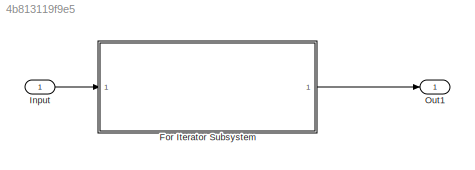
MODEL slx_4b813119f9e5
KIND model
CONFIG AbsTol = auto
CONFIG EnableMultiTasking = off
CONFIG FixedStep = auto
CONFIG MaxStep = auto
CONFIG MinStep = auto
CONFIG RelTol = 1e-3
CONFIG SampleTimeConstraint = Unconstrained
CONFIG SolverName = VariableStepAuto
CONFIG StartTime = 0.0
CONFIG StopTime = 1
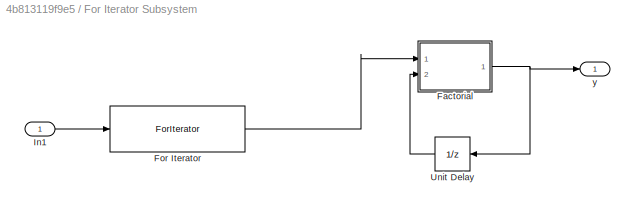
BLOCK [SubSystem] For Iterator Subsystem
  Ports = [1, 1]
  RequestExecContextInheritance = off
  TreatAsAtomicUnit = on
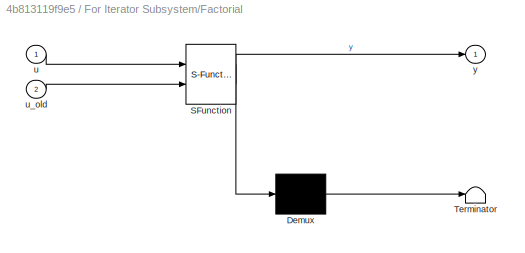
BLOCK [SubSystem] For Iterator Subsystem/Factorial
  ErrorFcn = Stateflow.Translate.translate
  PermitHierarchicalResolution = ExplicitOnly
  Ports = [2, 1]
  RequestExecContextInheritance = off
  SFBlockType = MATLAB Function
  TreatAsAtomicUnit = on
BLOCK [Demux] For Iterator Subsystem/Factorial/ Demux 
  Outputs = 1
  Ports = [1, 1]
BLOCK [S-Function] For Iterator Subsystem/Factorial/ SFunction 
  EnableBusSupport = on
  FunctionName = sf_sfun
  PortCounts = [2 2]
  Ports = [2, 2]
  SFcnIsStateOwnerBlock = off
  SFunctionDeploymentMode = off
  Tag = Stateflow S-Function 2
BLOCK [Terminator] For Iterator Subsystem/Factorial/ Terminator 
BLOCK [Inport] For Iterator Subsystem/Factorial/u
BLOCK [Inport] For Iterator Subsystem/Factorial/u_old
  Port = 2
BLOCK [Outport] For Iterator Subsystem/Factorial/y
BLOCK [ForIterator] For Iterator Subsystem/For Iterator
  IterationSource = external
  Ports = [1, 1]
BLOCK [Inport] For Iterator Subsystem/In1
BLOCK [UnitDelay] For Iterator Subsystem/Unit Delay
  HasFrameUpgradeWarning = on
  InitialCondition = 1
  NameLocation = top
  SampleTime = -1
BLOCK [Outport] For Iterator Subsystem/y
  OutDataTypeStr = int32
BLOCK [Inport] Input
  OutDataTypeStr = int32
BLOCK [Outport] Out1
NET For Iterator Subsystem/Factorial:1 -> For Iterator Subsystem/Unit Delay:1, For Iterator Subsystem/y:1
LINE For Iterator Subsystem/For Iterator:1 -> For Iterator Subsystem/Factorial:1
LINE For Iterator Subsystem/In1:1 -> For Iterator Subsystem/For Iterator:1
LINE For Iterator Subsystem/Unit Delay:1 -> For Iterator Subsystem/Factorial:2
LINE For Iterator Subsystem:1 -> Out1:1
LINE Input:1 -> For Iterator Subsystem:1
note: NET lines group one-source signal fan-out (src -> all destinations, sorted); 1:1 wires keep LINE
CHART For Iterator
Subsystem/Factorial states=1 transitions=1
  STATE_LABEL 'eML_blk_kernel()'
  STATE_LABEL 'SCRIPT:\nfunction y = fcn(u,u_old)\n\ny = u_old * u;\n'
CHART  states=0 transitions=0
